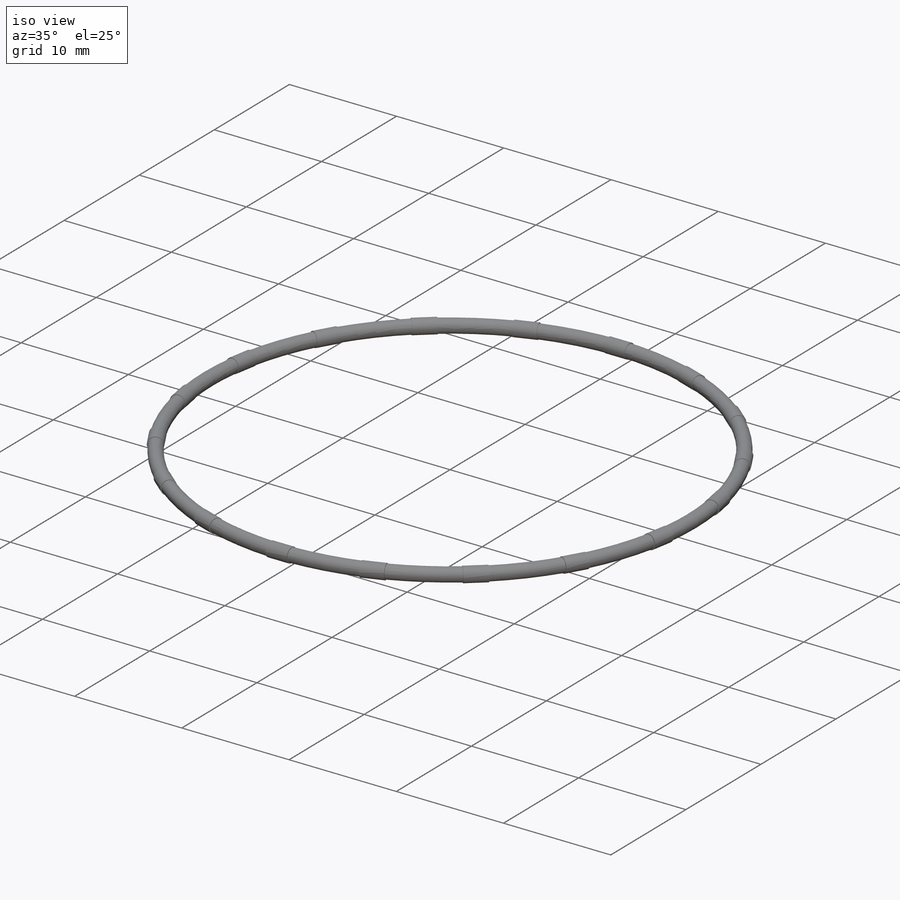
[diagram: iso view]
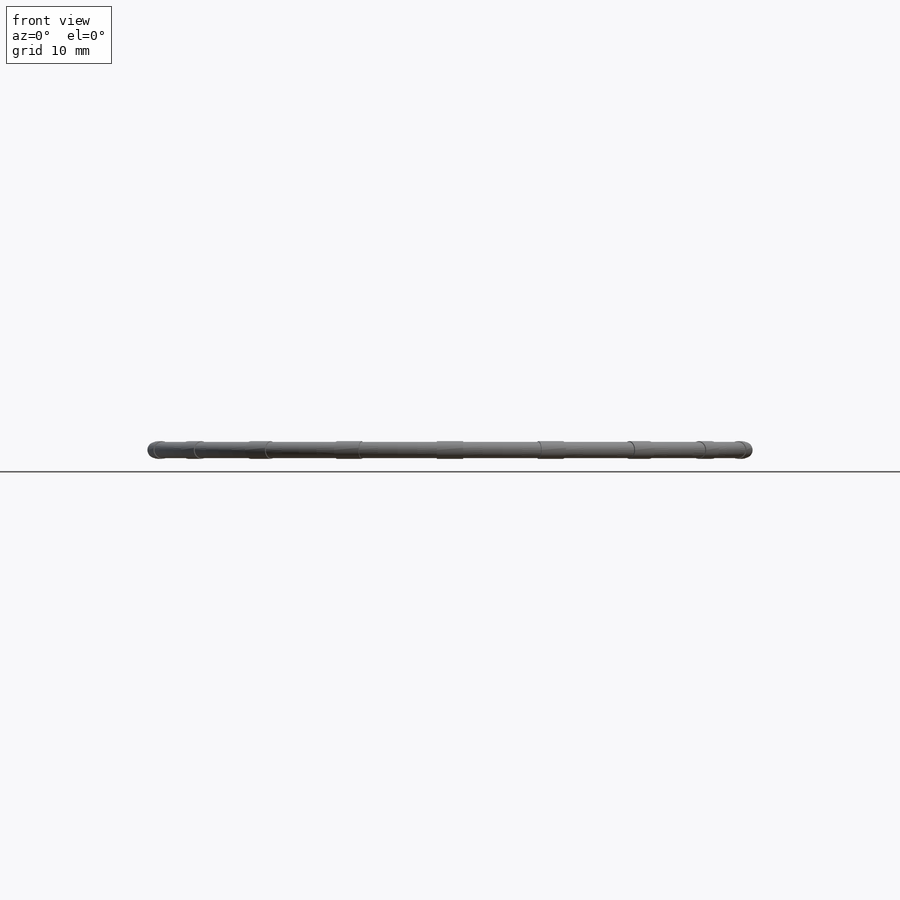
[diagram: front view]
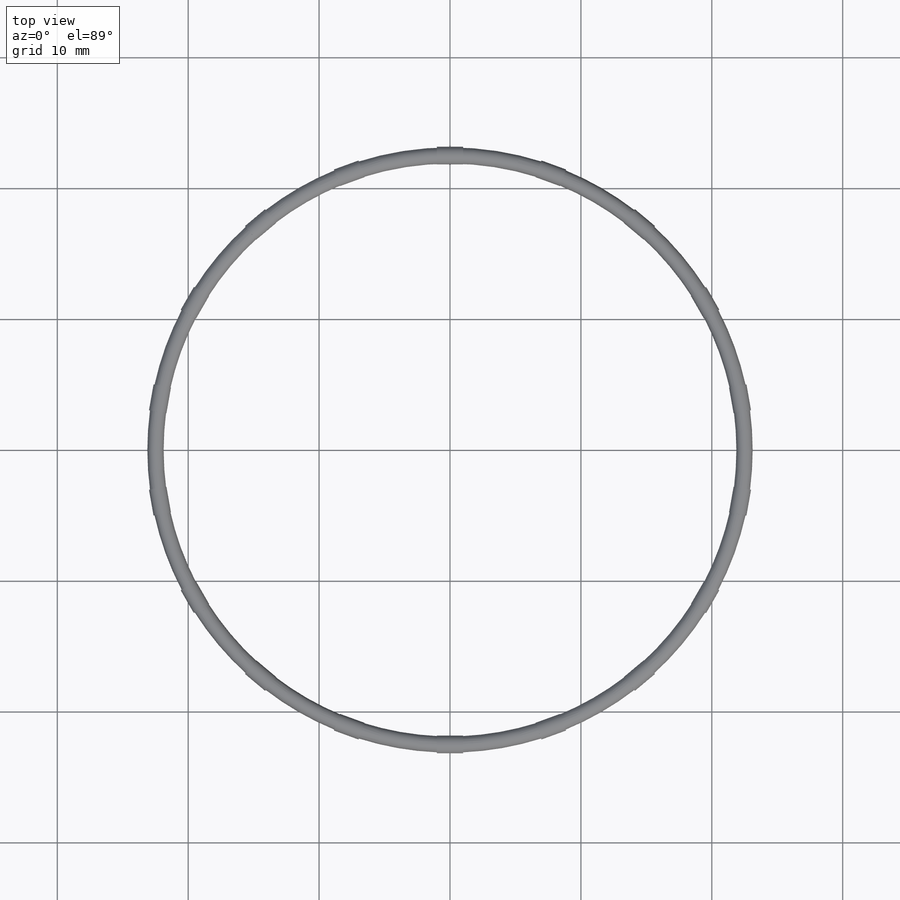
[diagram: top view]
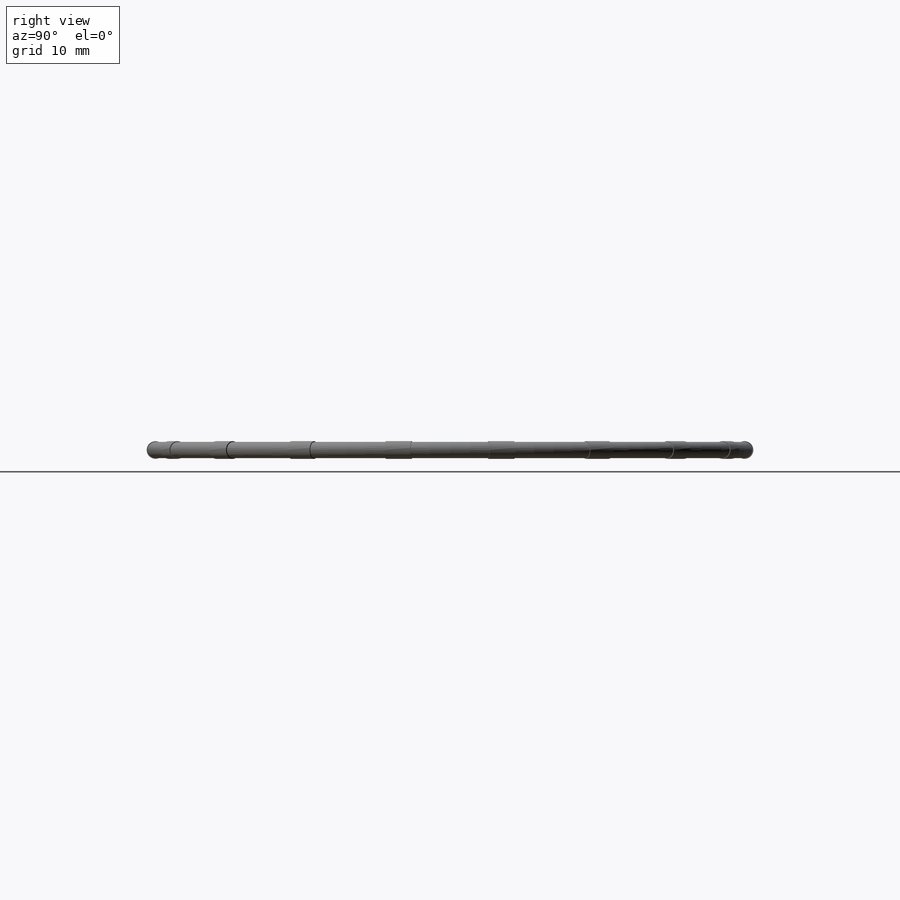
[diagram: right view]
SOLIDWORKS PART (.sldprt)
format: sldprt  version: not decoded by parser v0  size: 315,904 bytes
history: native  units: mm
features: plane x4, sketch x3, material x1, revolve x1, extrude x1, pattern_circular x1 (+9 scaffold rows collapsed)
feature tree (20):
  scaffold x9  (default folders/planes/origin — collapsed)
  material  "Material <não especificado>"
  plane  "Plano frontal"
  plane  "Plano superior"
  plane  "Plano direito"
  sketch  "Esboço1"  dims[D2=1.24mm D1=22.5mm]
  revolve  "Revolução1"  Angle=360deg
  sketch  "Esboço2"  dims[D1=22.5mm D2=18.0]
  plane  "Plano1"  Offset=1mm
  sketch  "Esboço6"  dims[D1=1.35mm]
  extrude  "Ressalto-extrusão1"  Depth=2mm
  pattern_circular  "PadrãoCircular1"  Count=18 Angle=360deg
decode coverage: 6 of 6 modeling features carry decoded parameters
note: suppression state not decoded; provenance and decode notes live in map.json
